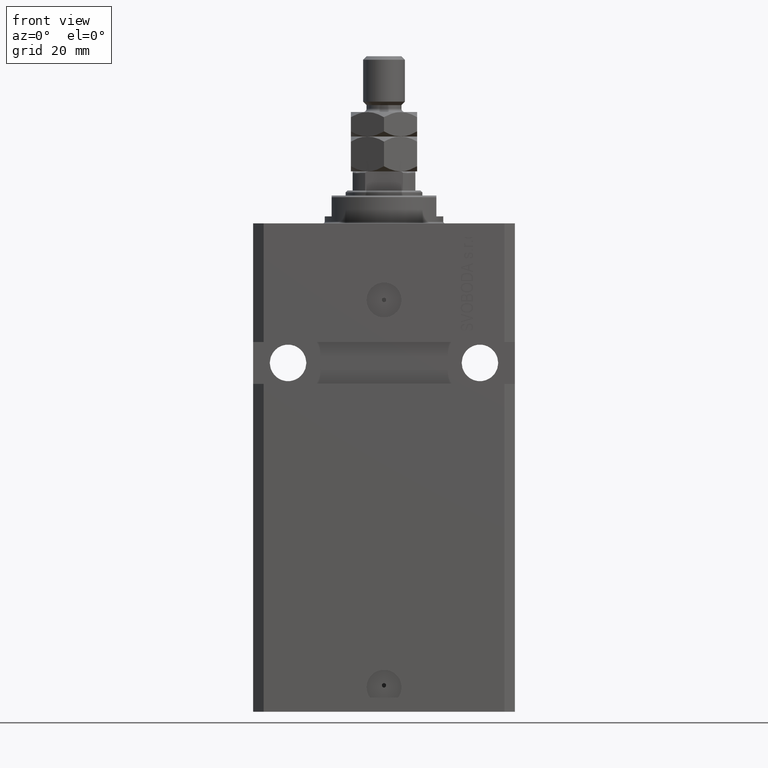
[diagram: clean part render]
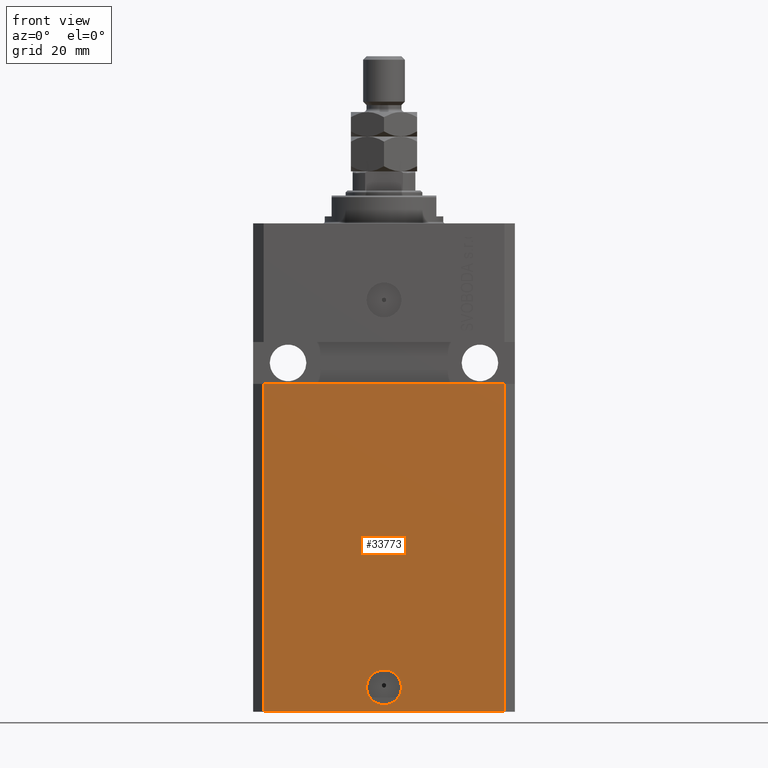
[diagram: same view with one face highlighted and labeled with its STEP entity id]
A machine part, front view. The second image highlights one B-rep face of the part: STEP entity #33773.
In plain terms, the highlighted planar face has unit normal (0, -1, 0).
Its self-contained STEP definition (entity closure, byte-faithful):
#451 = CARTESIAN_POINT ( 'NONE',  ( -34.49999999999998579, -27.50000000000000000, -46.00000000000000000 ) ) ;
#1953 = CARTESIAN_POINT ( 'NONE',  ( -34.49999999999998579, -27.49999999999999645, -140.0000000000000000 ) ) ;
#2242 = LINE ( 'NONE', #16349, #32023 ) ;
#2575 = VECTOR ( 'NONE', #12257, 1000.000000000000000 ) ;
#3680 = VECTOR ( 'NONE', #17732, 1000.000000000000000 ) ;
#3963 = DIRECTION ( 'NONE',  ( 0.000000000000000000, 0.000000000000000000, 1.000000000000000000 ) ) ;
#5207 = VERTEX_POINT ( 'NONE', #1953 ) ;
#5721 = EDGE_CURVE ( 'NONE', #24878, #17107, #16581, .T. ) ;
#6173 = LINE ( 'NONE', #20730, #3680 ) ;
#7216 = CARTESIAN_POINT ( 'NONE',  ( 34.49999999999999289, -27.49999999999999645, -140.0000000000000000 ) ) ;
#8112 = EDGE_CURVE ( 'NONE', #15377, #32586, #25431, .T. ) ;
#8698 = EDGE_CURVE ( 'NONE', #5207, #16009, #2242, .T. ) ;
#12257 = DIRECTION ( 'NONE',  ( 1.000000000000000000, 9.251858538542972814E-17, 9.251858538542972814E-17 ) ) ;
#12699 = LINE ( 'NONE', #43396, #2575 ) ;
#13729 = DIRECTION ( 'NONE',  ( 1.176083712526788232E-16, -1.000000000000000000, 0.000000000000000000 ) ) ;
#14092 = EDGE_CURVE ( 'NONE', #16009, #32586, #12699, .T. ) ;
#14606 = CARTESIAN_POINT ( 'NONE',  ( 0.000000000000000000, -27.49999999999999645, -133.0000000000000000 ) ) ;
#15377 = VERTEX_POINT ( 'NONE', #15899 ) ;
#15877 = PLANE ( 'NONE',  #36225 ) ;
#15899 = CARTESIAN_POINT ( 'NONE',  ( 34.49999999999999289, -27.49999999999999645, -140.0000000000000000 ) ) ;
#16009 = VERTEX_POINT ( 'NONE', #451 ) ;
#16349 = CARTESIAN_POINT ( 'NONE',  ( -34.49999999999998579, -27.49999999999999645, -140.0000000000000000 ) ) ;
#16581 = CIRCLE ( 'NONE', #31338, 5.000000000000006217 ) ;
#17063 = AXIS2_PLACEMENT_3D ( 'NONE', #28246, #13729, #20651 ) ;
#17107 = VERTEX_POINT ( 'NONE', #42346 ) ;
#17732 = DIRECTION ( 'NONE',  ( 1.000000000000000000, 0.000000000000000000, 0.000000000000000000 ) ) ;
#20030 = DIRECTION ( 'NONE',  ( 0.000000000000000000, 0.000000000000000000, 1.000000000000000000 ) ) ;
#20651 = DIRECTION ( 'NONE',  ( 1.000000000000000000, 0.000000000000000000, 0.000000000000000000 ) ) ;
#20730 = CARTESIAN_POINT ( 'NONE',  ( -34.49999999999998579, -27.49999999999999645, -140.0000000000000000 ) ) ;
#20982 = EDGE_LOOP ( 'NONE', ( #32020, #42307 ) ) ;
#23352 = ORIENTED_EDGE ( 'NONE', *, *, #8112, .T. ) ;
#24515 = DIRECTION ( 'NONE',  ( 1.176083712526788232E-16, -1.000000000000000000, 0.000000000000000000 ) ) ;
#24837 = EDGE_LOOP ( 'NONE', ( #27009, #35393, #39971, #23352 ) ) ;
#24878 = VERTEX_POINT ( 'NONE', #39927 ) ;
#25431 = LINE ( 'NONE', #7216, #38635 ) ;
#26252 = DIRECTION ( 'NONE',  ( 0.000000000000000000, -1.000000000000000000, 0.000000000000000000 ) ) ;
#27009 = ORIENTED_EDGE ( 'NONE', *, *, #14092, .F. ) ;
#28246 = CARTESIAN_POINT ( 'NONE',  ( 0.000000000000000000, -27.49999999999999645, -133.0000000000000000 ) ) ;
#29279 = CARTESIAN_POINT ( 'NONE',  ( -34.49999999999998579, -27.49999999999999645, -140.0000000000000000 ) ) ;
#29711 = FACE_BOUND ( 'NONE', #20982, .T. ) ;
#30448 = EDGE_CURVE ( 'NONE', #5207, #15377, #6173, .T. ) ;
#31208 = DIRECTION ( 'NONE',  ( 1.000000000000000000, 0.000000000000000000, 0.000000000000000000 ) ) ;
#31338 = AXIS2_PLACEMENT_3D ( 'NONE', #14606, #24515, #31208 ) ;
#31860 = CARTESIAN_POINT ( 'NONE',  ( 34.49999999999999289, -27.49999999999999289, -45.99999999999999289 ) ) ;
#32020 = ORIENTED_EDGE ( 'NONE', *, *, #5721, .F. ) ;
#32023 = VECTOR ( 'NONE', #20030, 1000.000000000000000 ) ;
#32586 = VERTEX_POINT ( 'NONE', #31860 ) ;
#33773 = ADVANCED_FACE ( 'NONE', ( #29711, #43771 ), #15877, .T. ) ;
#34271 = EDGE_CURVE ( 'NONE', #17107, #24878, #36933, .T. ) ;
#35393 = ORIENTED_EDGE ( 'NONE', *, *, #8698, .F. ) ;
#36225 = AXIS2_PLACEMENT_3D ( 'NONE', #29279, #26252, #43327 ) ;
#36933 = CIRCLE ( 'NONE', #17063, 5.000000000000006217 ) ;
#38635 = VECTOR ( 'NONE', #3963, 1000.000000000000000 ) ;
#39927 = CARTESIAN_POINT ( 'NONE',  ( 5.000000000000006217, -27.49999999999999645, -133.0000000000000000 ) ) ;
#39971 = ORIENTED_EDGE ( 'NONE', *, *, #30448, .T. ) ;
#42307 = ORIENTED_EDGE ( 'NONE', *, *, #34271, .F. ) ;
#42346 = CARTESIAN_POINT ( 'NONE',  ( -5.000000000000006217, -27.49999999999999645, -133.0000000000000000 ) ) ;
#43327 = DIRECTION ( 'NONE',  ( 0.000000000000000000, -0.000000000000000000, -1.000000000000000000 ) ) ;
#43396 = CARTESIAN_POINT ( 'NONE',  ( -37.50000000000000000, -27.50000000000000000, -46.00000000000000000 ) ) ;
#43771 = FACE_OUTER_BOUND ( 'NONE', #24837, .T. ) ;